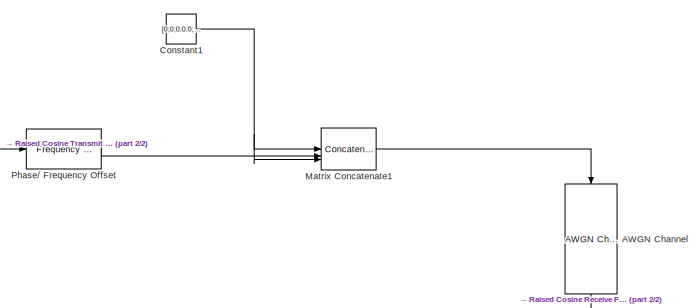
[diagram: root canvas - part 1/2, top right region]
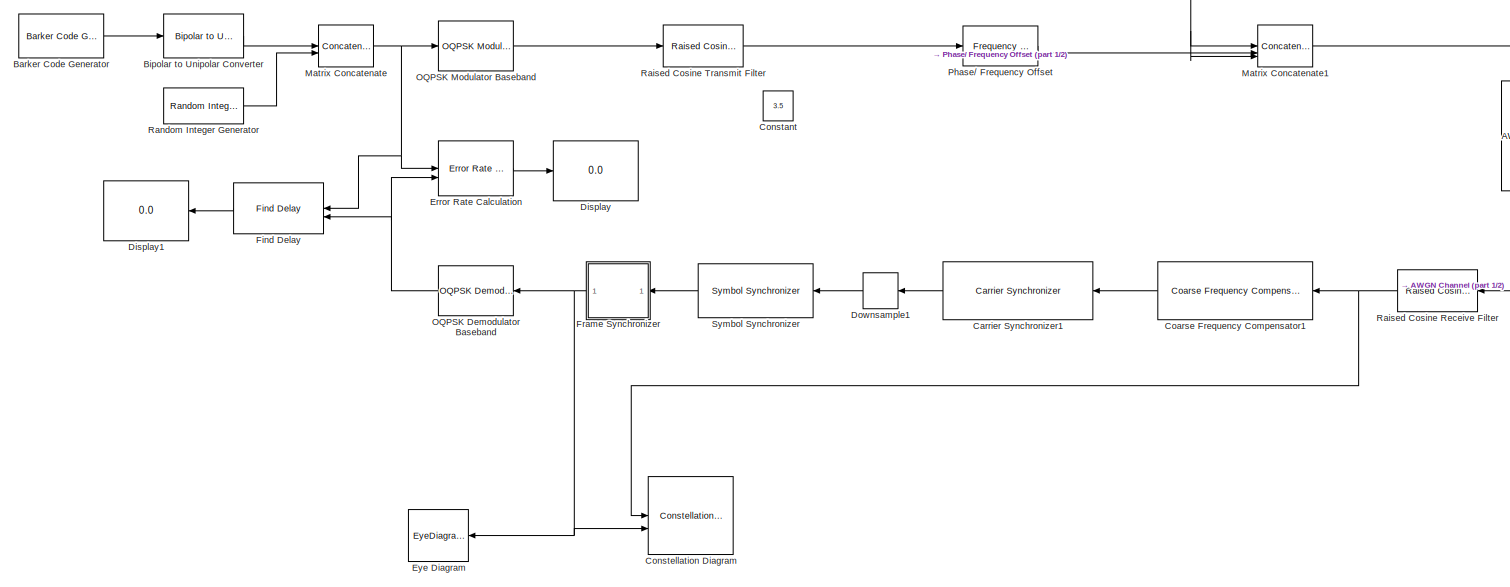
[diagram: root canvas - part 2/2, most of the canvas]
MODEL slx_6814340c106f
KIND model
CONFIG AbsTol = auto
CONFIG EnableMultiTasking = off
CONFIG FixedStep = auto
CONFIG MaxStep = auto
CONFIG MinStep = auto
CONFIG RelTol = 1e-3
CONFIG SampleTimeConstraint = Unconstrained
CONFIG SolverName = VariableStepAuto
CONFIG StartTime = 0.0
CONFIG StopTime = 10e-3
BLOCK [Reference] AWGN Channel  REF=commchan3/AWGN
Channel
  NameLocation = left
  SourceBlock = commchan3/AWGN\nChannel
  SourceType = AWGN Channel
BLOCK [Reference] Barker Code Generator  REF=commseqgen3/Barker Code
Generator
  SourceBlock = commseqgen3/Barker Code\nGenerator
  SourceType = Barker Code Generator
BLOCK [Reference] Bipolar to Unipolar Converter  REF=commutil2/Bipolar to
Unipolar
Converter
  SourceBlock = commutil2/Bipolar to\nUnipolar\nConverter
  SourceType = Bipolar to Unipolar Converter
BLOCK [Reference] Carrier Synchronizer1  REF=commsync2/Carrier Synchronizer
  NameLocation = top
  SourceBlock = commsync2/Carrier Synchronizer
  SourceType = Carrier Synchronizer
BLOCK [Reference] Coarse Frequency Compensator1  REF=commrfcorlib/Coarse Frequency
Compensator
  LibrarySourceBlock = commsync2/Coarse Frequency\nCompensator
  NameLocation = top
  SourceBlock = commrfcorlib/Coarse Frequency\nCompensator
  SourceType = Coarse Frequency Compensator
BLOCK [Constant] Constant
  SampleTime = 1e-5
  Value = 3.5
BLOCK [Constant] Constant1
  SampleTime = -1
  Value = [0;0;0;0;0;0;0;0;0;0;0;0;0;0;0;0;0;0;0;0;0;0;0;0;0;0;0;0;0;0;0;0;0;0;0;0;0;0;0;0;0;0;0;0;0;0;0;0;0;0;0;0;0;0;0;0;0;0;0;0;0;0;0;0;0;0;0;0;0;0;0;0;0;0;0;0;0;0;0;0;0;0;0;0;0;0;0;0;0;0;0;0;0;0;0;0;0;0;0;0;0;0;0;0;0;0;0;0;0;0;0;0;0;0;0;0;0;0;0;0;0;0;0;0;0;0;0;0;0;0;0;0;0;0;0;0;0;0;0;0;0;0;0;0;0;0;0;0;0;0;0;0;0;0;0;0;0;0;0;0;0;0;0;0;0;0;0;0;0;0;0;0;0;0;0;0;0;0;0;0;0;0;0;0;0;0;0;0;0;0;0;0;0;0;0;0;0;0;0;0...<+273ch>
  VectorParams1D = off
BLOCK [ConstellationDiagram] Constellation Diagram
  GraphicalSettings = {"Style":{"BackgroundColor":[0.12941176470588237,0.12941176470588237,0.12941176470588237],"AxesColor":[0.07058823529411765,0.07058823529411765,0.07058823529411765],"LabelsColor":[0.8509803921568627,0.8509803921568627,0.8509803921568627],"PreserveColors":false,"LineStyle":["NONE","NONE","NONE","NONE"],"LineWidth":[1,2,1,1],"LineColor":[[1,0.9098039215686274,0.39215686274509803],[0.14901960784313725...<+475ch>
  NumInputPorts = 2
  ReferenceConstellation = {[0.7071+0.7071i          -0.7071+0.7071i          -0.7071-0.7071i            0.707-0.7071i][0.7071+0.7071i          -0.7071+0.7071i          -0.7071-0.7071i            0.707-0.7071i]}
  ScopeFrameLocation = window
  ShowLegend = on
  WasSavedAsWebScope = on
  WindowPosition = [306.000000,28.000000,801.000000,649.000000,]
BLOCK [Display] Display
  Decimation = 1
BLOCK [Display] Display1
  Decimation = 1
  NameLocation = top
BLOCK [DownSample] Downsample1
  N = 8
  NameLocation = top
BLOCK [Reference] Error Rate Calculation  REF=commsink2/Error Rate
Calculation
  SourceBlock = commsink2/Error Rate\nCalculation
  SourceType = Error Rate Calculation
BLOCK [EyeDiagramBlock] Eye Diagram
  GraphicalSettings = {"GraphicalSettings":{"Style":{"BackgroundColor":[0.12941176470588237,0.12941176470588237,0.12941176470588237],"AxesColor":[0.07058823529411765,0.07058823529411765,0.07058823529411765],"LabelsColor":[0.8509803921568627,0.8509803921568627,0.8509803921568627],"PreserveColors":false,"Visible":[],"LineStyle":["-"],"LineWidth":[1.5,true],"LineColor":[[1,0.9098039215686274,0.39215686274509803]],"Marker"...<+27ch>
  NameLocation = top
  SamplesPerSymbol = 2
  ScopeFrameLocation = window
  WasSavedAsWebScope = on
  WindowPosition = [70.000000,61.000000,1059.000000,721.000000,]
  YLimits = [-1.1356977182574655,1.1330347719701188]
BLOCK [Reference] Find Delay  REF=commutil2/Find Delay
  NameLocation = top
  SourceBlock = commutil2/Find Delay
  SourceType = Find Delay
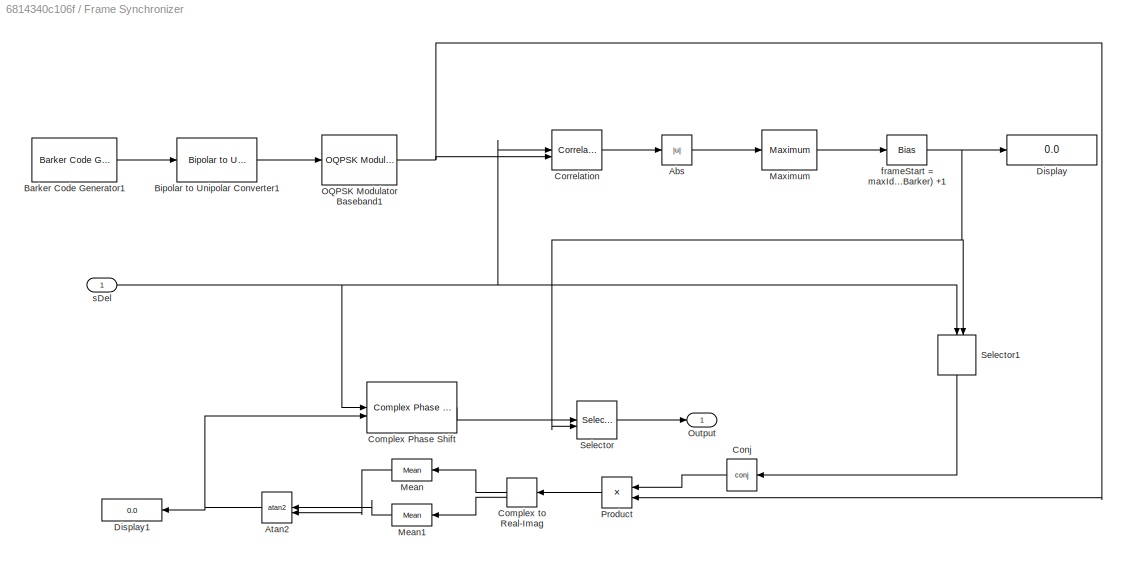
BLOCK [SubSystem] Frame Synchronizer
  NameLocation = top
BLOCK [Abs] Frame Synchronizer/Abs
  SaturateOnIntegerOverflow = off
BLOCK [Trigonometry] Frame Synchronizer/Atan2
  NameLocation = top
  Operator = atan2
BLOCK [Reference] Frame Synchronizer/Barker Code Generator1  REF=commseqgen3/Barker Code
Generator
  SourceBlock = commseqgen3/Barker Code\nGenerator
  SourceType = Barker Code Generator
BLOCK [Reference] Frame Synchronizer/Bipolar to Unipolar Converter1  REF=commutil2/Bipolar to
Unipolar
Converter
  SourceBlock = commutil2/Bipolar to\nUnipolar\nConverter
  SourceType = Bipolar to Unipolar Converter
BLOCK [Reference] Frame Synchronizer/Complex Phase Shift  REF=commutil2/Complex Phase
Shift
  SourceBlock = commutil2/Complex Phase\nShift
  SourceType = Complex Phase Shift
BLOCK [ComplexToRealImag] Frame Synchronizer/Complex to Real-Imag
  NameLocation = top
BLOCK [Math] Frame Synchronizer/Conj
  NameLocation = top
  Operator = conj
BLOCK [Reference] Frame Synchronizer/Correlation  REF=dspstat3/Correlation
  SourceBlock = dspstat3/Correlation
  SourceType = Correlation
BLOCK [Display] Frame Synchronizer/Display
  Decimation = 1
BLOCK [Display] Frame Synchronizer/Display1
  Decimation = 1
  NameLocation = top
BLOCK [Reference] Frame Synchronizer/Maximum  REF=dspstat3/Maximum
  SourceBlock = dspstat3/Maximum
  SourceType = Maximum
  UserDataPersistent = on
BLOCK [Reference] Frame Synchronizer/Mean  REF=dspstat3/Mean
  NameLocation = top
  SourceBlock = dspstat3/Mean
  SourceType = Mean
  UserDataPersistent = on
BLOCK [Reference] Frame Synchronizer/Mean1  REF=dspstat3/Mean
  NameLocation = top
  SourceBlock = dspstat3/Mean
  SourceType = Mean
  UserDataPersistent = on
BLOCK [Reference] Frame Synchronizer/OQPSK Modulator Baseband1  REF=commdigbbndpm3/OQPSK
Modulator
Baseband
  SourceBlock = commdigbbndpm3/OQPSK\nModulator\nBaseband
  SourceType = OQPSK Modulator Baseband
  UserDataPersistent = on
BLOCK [Outport] Frame Synchronizer/Output
BLOCK [Product] Frame Synchronizer/Product
  NameLocation = top
BLOCK [Selector] Frame Synchronizer/Selector
  IndexOptions = Starting index (port)
  Indices = [1 3]
  OutputSizes = 90
BLOCK [Selector] Frame Synchronizer/Selector1
  IndexOptions = Starting index (port)
  Indices = [1 3]
  NameLocation = left
  OutputSizes = 26
BLOCK [Bias] Frame Synchronizer/frameStart = maxIdx - len(Barker) +1
  Bias = -25
  SaturateOnIntegerOverflow = off
BLOCK [Inport] Frame Synchronizer/sDel
BLOCK [Concatenate] Matrix Concatenate
  Mode = Multidimensional array
BLOCK [Concatenate] Matrix Concatenate1
  Mode = Multidimensional array
  NumInputs = 3
BLOCK [Reference] OQPSK Demodulator Baseband  REF=commdigbbndpm3/OQPSK
Demodulator
Baseband
  NameLocation = top
  SourceBlock = commdigbbndpm3/OQPSK\nDemodulator\nBaseband
  SourceType = OQPSK Demodulator Baseband
  UserDataPersistent = on
BLOCK [Reference] OQPSK Modulator Baseband  REF=commdigbbndpm3/OQPSK
Modulator
Baseband
  SourceBlock = commdigbbndpm3/OQPSK\nModulator\nBaseband
  SourceType = OQPSK Modulator Baseband
  UserDataPersistent = on
BLOCK [Reference] Phase// Frequency Offset  REF=commrflib2/Phase//
Frequency
Offset
  SourceBlock = commrflib2/Phase//\nFrequency\nOffset
  SourceType = Phase/Frequency Offset
BLOCK [Reference] Raised Cosine Receive Filter  REF=commfilt2/Raised Cosine
Receive Filter
  NameLocation = top
  SourceBlock = commfilt2/Raised Cosine\nReceive Filter
  SourceType = Raised Cosine Receive Filter
BLOCK [Reference] Raised Cosine Transmit Filter  REF=commfilt2/Raised Cosine
Transmit Filter
  SourceBlock = commfilt2/Raised Cosine\nTransmit Filter
  SourceType = Raised Cosine Transmit Filter
BLOCK [Reference] Random Integer Generator  REF=commrandsrc3/Random Integer
Generator
  SourceBlock = commrandsrc3/Random Integer\nGenerator
  SourceType = Random Integer Generator
BLOCK [Reference] Symbol Synchronizer  REF=commsync2/Symbol Synchronizer
  Commented = through
  NameLocation = top
  SourceBlock = commsync2/Symbol Synchronizer
  SourceType = Symbol Synchronizer
LINE AWGN Channel:1 -> Raised Cosine Receive Filter:1
LINE Barker Code Generator:1 -> Bipolar to Unipolar Converter:1
LINE Bipolar to Unipolar Converter:1 -> Matrix Concatenate:1
LINE Carrier Synchronizer1:1 -> Downsample1:1
LINE Coarse Frequency Compensator1:1 -> Carrier Synchronizer1:1
NET Constant1:1 -> Matrix Concatenate1:1, Matrix Concatenate1:3
LINE Downsample1:1 -> Symbol Synchronizer:1
LINE Error Rate Calculation:1 -> Display:1
LINE Find Delay:1 -> Display1:1
LINE Frame Synchronizer/Abs:1 -> Frame Synchronizer/Maximum:1
NET Frame Synchronizer/Atan2:1 -> Frame Synchronizer/Complex Phase Shift:2, Frame Synchronizer/Display1:1
LINE Frame Synchronizer/Barker Code Generator1:1 -> Frame Synchronizer/Bipolar to Unipolar Converter1:1
LINE Frame Synchronizer/Bipolar to Unipolar Converter1:1 -> Frame Synchronizer/OQPSK Modulator Baseband1:1
LINE Frame Synchronizer/Complex Phase Shift:1 -> Frame Synchronizer/Selector:1
LINE Frame Synchronizer/Complex to Real-Imag:1 -> Frame Synchronizer/Mean:1
LINE Frame Synchronizer/Complex to Real-Imag:2 -> Frame Synchronizer/Mean1:1
LINE Frame Synchronizer/Conj:1 -> Frame Synchronizer/Product:1
LINE Frame Synchronizer/Correlation:1 -> Frame Synchronizer/Abs:1
LINE Frame Synchronizer/Maximum:1 -> Frame Synchronizer/frameStart = maxIdx - len(Barker) +1:1
LINE Frame Synchronizer/Mean1:1 -> Frame Synchronizer/Atan2:1
LINE Frame Synchronizer/Mean:1 -> Frame Synchronizer/Atan2:2
NET Frame Synchronizer/OQPSK Modulator Baseband1:1 -> Frame Synchronizer/Correlation:2, Frame Synchronizer/Product:2
LINE Frame Synchronizer/Product:1 -> Frame Synchronizer/Complex to Real-Imag:1
LINE Frame Synchronizer/Selector1:1 -> Frame Synchronizer/Conj:1
LINE Frame Synchronizer/Selector:1 -> Frame Synchronizer/Output:1
NET Frame Synchronizer/frameStart = maxIdx - len(Barker) +1:1 -> Frame Synchronizer/Display:1, Frame Synchronizer/Selector1:2, Frame Synchronizer/Selector:2
NET Frame Synchronizer/sDel:1 -> Frame Synchronizer/Complex Phase Shift:1, Frame Synchronizer/Correlation:1, Frame Synchronizer/Selector1:1
NET Frame Synchronizer:1 -> Constellation Diagram:2, Eye Diagram:1, OQPSK Demodulator Baseband:1
LINE Matrix Concatenate1:1 -> AWGN Channel:1
NET Matrix Concatenate:1 -> Error Rate Calculation:1, Find Delay:1, OQPSK Modulator Baseband:1
NET OQPSK Demodulator Baseband:1 -> Error Rate Calculation:2, Find Delay:2
LINE OQPSK Modulator Baseband:1 -> Raised Cosine Transmit Filter:1
LINE Phase// Frequency Offset:1 -> Matrix Concatenate1:2
NET Raised Cosine Receive Filter:1 -> Coarse Frequency Compensator1:1, Constellation Diagram:1
LINE Raised Cosine Transmit Filter:1 -> Phase// Frequency Offset:1
LINE Random Integer Generator:1 -> Matrix Concatenate:2
LINE Symbol Synchronizer:1 -> Frame Synchronizer:1
note: NET lines group one-source signal fan-out (src -> all destinations, sorted); 1:1 wires keep LINE
